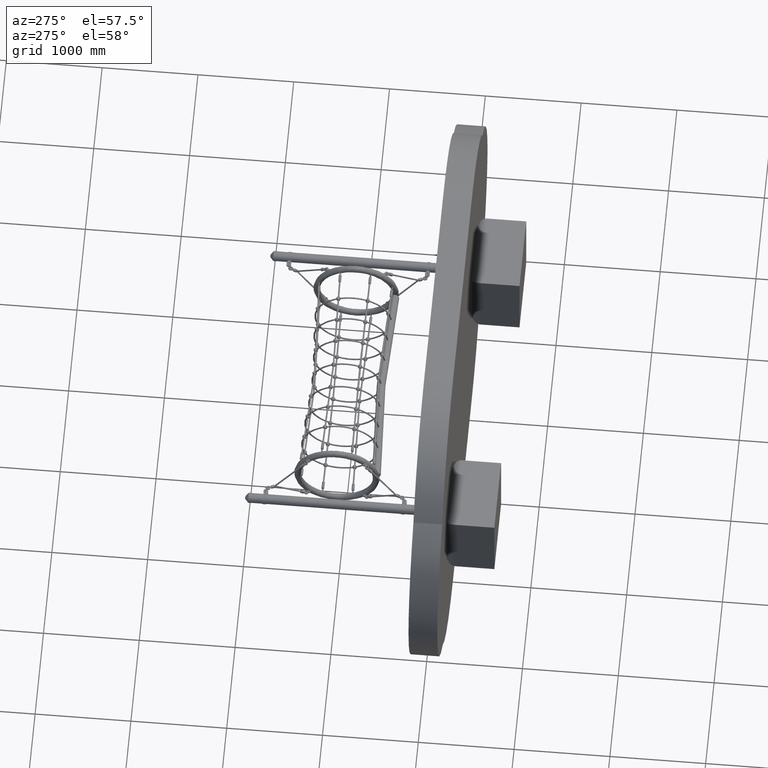
[diagram: clean part render]
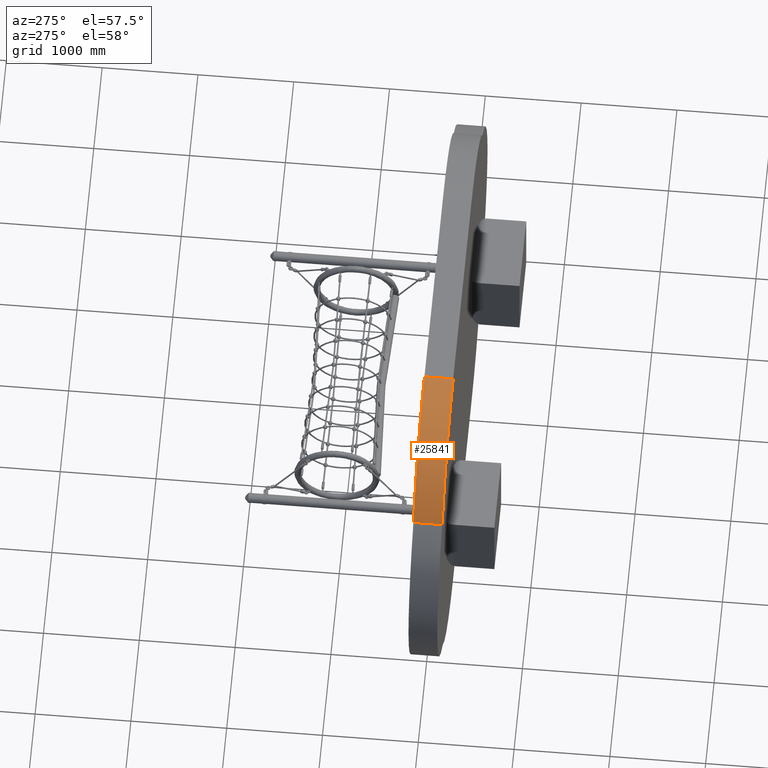
[diagram: same view with one face highlighted and labeled with its STEP entity id]
A machine part, auxiliary view. The second image highlights one B-rep face of the part: STEP entity #25841.
In plain terms, the highlighted cylindrical surface (partial cylindrical patch) has radius 1500 mm, axis along (0, -1, -0).
Its self-contained STEP definition (entity closure, byte-faithful):
#212 = AXIS2_PLACEMENT_3D ( 'NONE', #23770, #7674, #26334 ) ;
#552 = LINE ( 'NONE', #3046, #28183 ) ;
#3046 = CARTESIAN_POINT ( 'NONE',  ( 0.3999999999999999100, 0.2999999999999999900, 1.962000000000000200 ) ) ;
#4394 = CARTESIAN_POINT ( 'NONE',  ( 0.4000000000000000200, 0.2999999999999999900, 0.4620000000000000800 ) ) ;
#5163 = DIRECTION ( 'NONE',  ( 0.0000000000000000000, 1.000000000000000000, 0.0000000000000000000 ) ) ;
#7674 = DIRECTION ( 'NONE',  ( 0.0000000000000000000, 1.000000000000000000, 0.0000000000000000000 ) ) ;
#7762 = ORIENTED_EDGE ( 'NONE', *, *, #13373, .T. ) ;
#8196 = VERTEX_POINT ( 'NONE', #33341 ) ;
#9187 = CARTESIAN_POINT ( 'NONE',  ( 0.3999999999999999700, 0.2999999999999999900, 1.962000000000000200 ) ) ;
#9691 = DIRECTION ( 'NONE',  ( -0.0000000000000000000, -1.000000000000000000, -0.0000000000000000000 ) ) ;
#10804 = ORIENTED_EDGE ( 'NONE', *, *, #16310, .F. ) ;
#11909 = EDGE_LOOP ( 'NONE', ( #10804, #7762, #31226, #27408 ) ) ;
#12233 = LINE ( 'NONE', #15469, #26275 ) ;
#12298 = CARTESIAN_POINT ( 'NONE',  ( 0.4000000000000001300, 0.0000000000000000000, 1.962000000000000200 ) ) ;
#13373 = EDGE_CURVE ( 'NONE', #8196, #29166, #12233, .T. ) ;
#14367 = EDGE_CURVE ( 'NONE', #32998, #27892, #552, .T. ) ;
#14788 = AXIS2_PLACEMENT_3D ( 'NONE', #21390, #5163, #23999 ) ;
#15035 = EDGE_CURVE ( 'NONE', #29166, #32998, #26517, .T. ) ;
#15469 = CARTESIAN_POINT ( 'NONE',  ( -0.9102427855403717500, 0.2999999999999999900, 1.192249164970017100 ) ) ;
#16310 = EDGE_CURVE ( 'NONE', #8196, #27892, #23995, .T. ) ;
#17106 = AXIS2_PLACEMENT_3D ( 'NONE', #4394, #9691, #30941 ) ;
#20518 = CYLINDRICAL_SURFACE ( 'NONE', #17106, 1.500000000000000000 ) ;
#21390 = CARTESIAN_POINT ( 'NONE',  ( 0.4000000000000000200, 0.0000000000000000000, 0.4620000000000000800 ) ) ;
#23770 = CARTESIAN_POINT ( 'NONE',  ( 0.4000000000000000200, 0.2999999999999999900, 0.4620000000000000800 ) ) ;
#23995 = CIRCLE ( 'NONE', #212, 1.500000000000000000 ) ;
#23999 = DIRECTION ( 'NONE',  ( 0.0000000000000000000, 0.0000000000000000000, -1.000000000000000000 ) ) ;
#25841 = ADVANCED_FACE ( 'NONE', ( #29750 ), #20518, .T. ) ;
#26275 = VECTOR ( 'NONE', #33535, 1.000000000000000000 ) ;
#26334 = DIRECTION ( 'NONE',  ( 0.0000000000000000000, 0.0000000000000000000, -1.000000000000000000 ) ) ;
#26517 = CIRCLE ( 'NONE', #14788, 1.500000000000000000 ) ;
#27408 = ORIENTED_EDGE ( 'NONE', *, *, #14367, .T. ) ;
#27892 = VERTEX_POINT ( 'NONE', #9187 ) ;
#28183 = VECTOR ( 'NONE', #29672, 1.000000000000000000 ) ;
#29166 = VERTEX_POINT ( 'NONE', #32311 ) ;
#29672 = DIRECTION ( 'NONE',  ( 0.0000000000000000000, 1.000000000000000000, 0.0000000000000000000 ) ) ;
#29750 = FACE_OUTER_BOUND ( 'NONE', #11909, .T. ) ;
#30941 = DIRECTION ( 'NONE',  ( 0.0000000000000000000, 0.0000000000000000000, -1.000000000000000000 ) ) ;
#31226 = ORIENTED_EDGE ( 'NONE', *, *, #15035, .T. ) ;
#32311 = CARTESIAN_POINT ( 'NONE',  ( -0.9102427855403714100, 0.0000000000000000000, 1.192249164970017800 ) ) ;
#32998 = VERTEX_POINT ( 'NONE', #12298 ) ;
#33341 = CARTESIAN_POINT ( 'NONE',  ( -0.9102427855403714100, 0.2999999999999999900, 1.192249164970017800 ) ) ;
#33535 = DIRECTION ( 'NONE',  ( -0.0000000000000000000, -1.000000000000000000, -0.0000000000000000000 ) ) ;